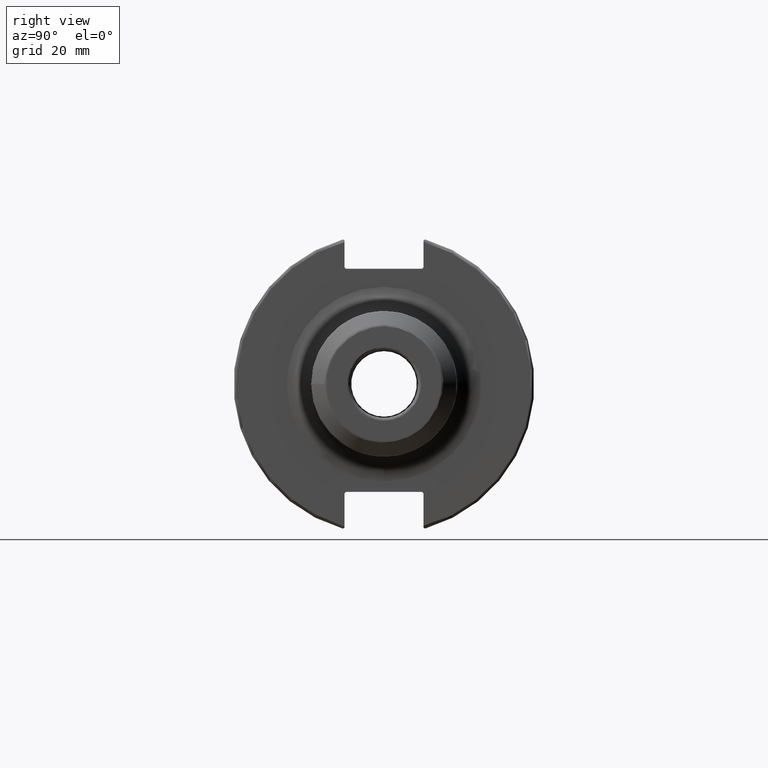
[diagram: clean part render]
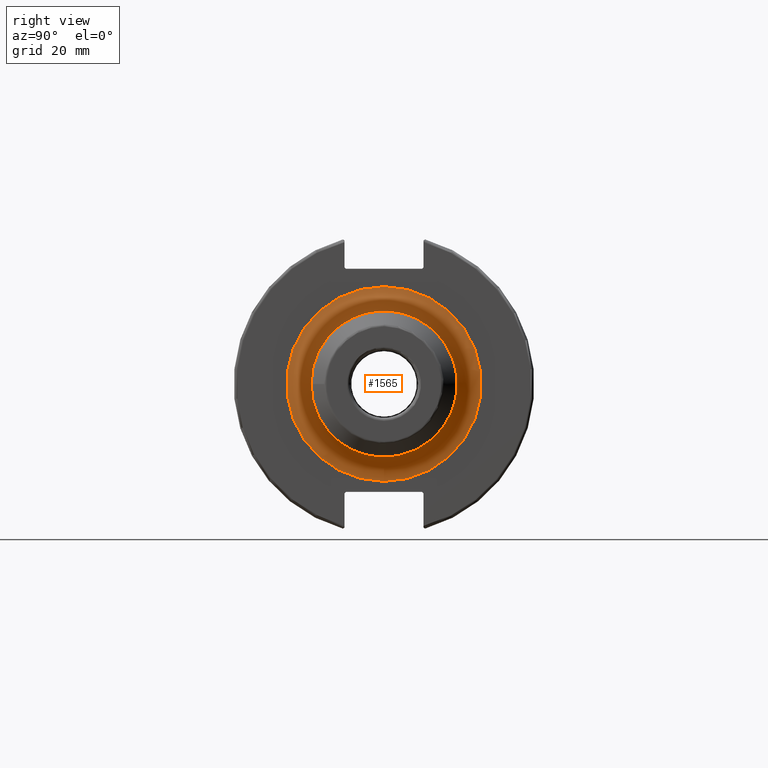
[diagram: same view with one face highlighted and labeled with its STEP entity id]
A machine part, right view. The second image highlights one B-rep face of the part: STEP entity #1565.
In plain terms, the highlighted toroidal blend (fillet) surface has major radius 31.876 mm and minor (blend) radius 8 mm.
Its self-contained STEP definition (entity closure, byte-faithful):
#36=TOROIDAL_SURFACE('',#1699,31.876,8.);
#358=FACE_OUTER_BOUND('',#456,.T.);
#456=EDGE_LOOP('',(#1102,#1103,#1104,#1105,#1106));
#564=CIRCLE('',#1686,23.876);
#565=CIRCLE('',#1687,23.876);
#573=CIRCLE('',#1700,8.);
#574=CIRCLE('',#1701,31.876);
#652=VERTEX_POINT('',#2472);
#653=VERTEX_POINT('',#2474);
#659=VERTEX_POINT('',#2495);
#821=EDGE_CURVE('',#653,#652,#564,.T.);
#822=EDGE_CURVE('',#652,#653,#565,.T.);
#831=EDGE_CURVE('',#653,#659,#573,.T.);
#832=EDGE_CURVE('',#659,#659,#574,.T.);
#1102=ORIENTED_EDGE('',*,*,#822,.T.);
#1103=ORIENTED_EDGE('',*,*,#831,.T.);
#1104=ORIENTED_EDGE('',*,*,#832,.T.);
#1105=ORIENTED_EDGE('',*,*,#831,.F.);
#1106=ORIENTED_EDGE('',*,*,#821,.T.);
#1565=ADVANCED_FACE('',(#358),#36,.F.);
#1686=AXIS2_PLACEMENT_3D('',#2475,#1888,#1889);
#1687=AXIS2_PLACEMENT_3D('',#2476,#1890,#1891);
#1699=AXIS2_PLACEMENT_3D('',#2494,#1915,#1916);
#1700=AXIS2_PLACEMENT_3D('',#2496,#1917,#1918);
#1701=AXIS2_PLACEMENT_3D('',#2497,#1919,#1920);
#1888=DIRECTION('center_axis',(-1.,0.,0.));
#1889=DIRECTION('ref_axis',(0.,-1.,-1.22464679914735E-16));
#1890=DIRECTION('center_axis',(-1.,0.,0.));
#1891=DIRECTION('ref_axis',(0.,-1.,-1.22464679914735E-16));
#1915=DIRECTION('center_axis',(-1.,0.,0.));
#1916=DIRECTION('ref_axis',(0.,0.,1.));
#1917=DIRECTION('center_axis',(0.,-1.,1.22464679914735E-16));
#1918=DIRECTION('ref_axis',(0.,-1.22464679914735E-16,-1.));
#1919=DIRECTION('center_axis',(1.,0.,0.));
#1920=DIRECTION('ref_axis',(0.,-1.,-1.22464679914735E-16));
#2472=CARTESIAN_POINT('',(27.05,-23.876,-2.92396669764422E-15));
#2474=CARTESIAN_POINT('',(27.05,-2.92396669764422E-15,-23.876));
#2475=CARTESIAN_POINT('Origin',(27.05,0.,0.));
#2476=CARTESIAN_POINT('Origin',(27.05,0.,0.));
#2494=CARTESIAN_POINT('Origin',(27.05,0.,0.));
#2495=CARTESIAN_POINT('',(19.05,-3.9036841369621E-15,-31.876));
#2496=CARTESIAN_POINT('Origin',(27.05,-3.9036841369621E-15,-31.876));
#2497=CARTESIAN_POINT('Origin',(19.05,0.,0.));